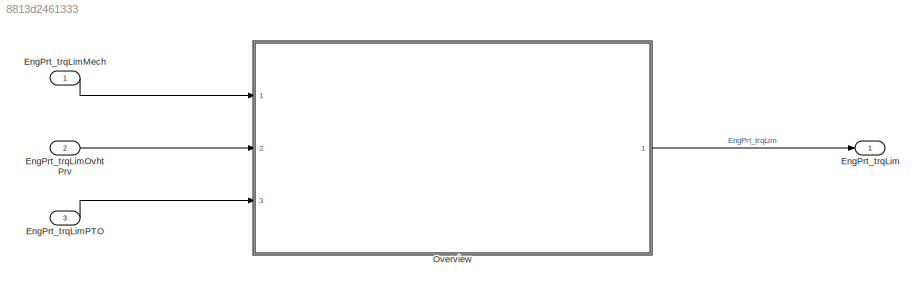
MODEL slx_8813d2461333
KIND model
CONFIG AbsTol = auto
CONFIG EnableMultiTasking = off
CONFIG FixedStep = 0.001
CONFIG MaxStep = auto
CONFIG MinStep = auto
CONFIG RelTol = 1e-3
CONFIG SampleTimeConstraint = Unconstrained
CONFIG Solver = FixedStepDiscrete
CONFIG SolverName = FixedStepDiscrete
CONFIG StartTime = 0.0
CONFIG StopTime = Inf
BLOCK [Outport] EngPrt_trqLim
  IconDisplay = Port number
BLOCK [Inport] EngPrt_trqLimMech
  Description = Resulting limiting torque for engine mechanics protection (inner engine torque)
  IconDisplay = Port number
  OutDataTypeStr = Torq
  OutMax = 3276.7
  OutMin = -3276.8
  PortDimensions = [1 1]
  Unit = Nm
BLOCK [Inport] EngPrt_trqLimOvhtPrv
  Description = Torque limitation value for engine protection from overheating
  IconDisplay = Port number
  OutDataTypeStr = Torq
  OutMax = 3276.7
  OutMin = -3276.8
  Port = 2
  PortDimensions = [1 1]
  Unit = Nm
BLOCK [Inport] EngPrt_trqLimPTO
  Description = Torque limitation value from PTO state
  IconDisplay = Port number
  OutDataTypeStr = Torq
  OutMax = 3276.7
  OutMin = -3276.8
  Port = 3
  PortDimensions = [1 1]
  Unit = Nm
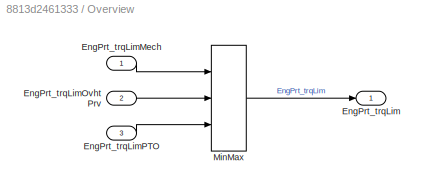
BLOCK [SubSystem] Overview
  Ports = [3, 1]
  RequestExecContextInheritance = off
BLOCK [Outport] Overview/EngPrt_trqLim
  IconDisplay = Port number
  Tag = Nm
BLOCK [Inport] Overview/EngPrt_trqLimMech
  IconDisplay = Port number
  Tag = Nm
BLOCK [Inport] Overview/EngPrt_trqLimOvhtPrv
  IconDisplay = Port number
  Port = 2
  Tag = Nm
BLOCK [Inport] Overview/EngPrt_trqLimPTO
  IconDisplay = Port number
  Port = 3
  Tag = Nm
BLOCK [MinMax] Overview/MinMax
  InputSameDT = off
  Inputs = 3
  Ports = [3, 1]
  SaturateOnIntegerOverflow = off
LINE EngPrt_trqLimMech:1 -> Overview:1
LINE EngPrt_trqLimOvhtPrv:1 -> Overview:2
LINE EngPrt_trqLimPTO:1 -> Overview:3
LINE Overview/EngPrt_trqLimMech:1 -> Overview/MinMax:1
LINE Overview/EngPrt_trqLimOvhtPrv:1 -> Overview/MinMax:2
LINE Overview/EngPrt_trqLimPTO:1 -> Overview/MinMax:3
LINE Overview/MinMax:1 -> Overview/EngPrt_trqLim:1
LINE Overview:1 -> EngPrt_trqLim:1
